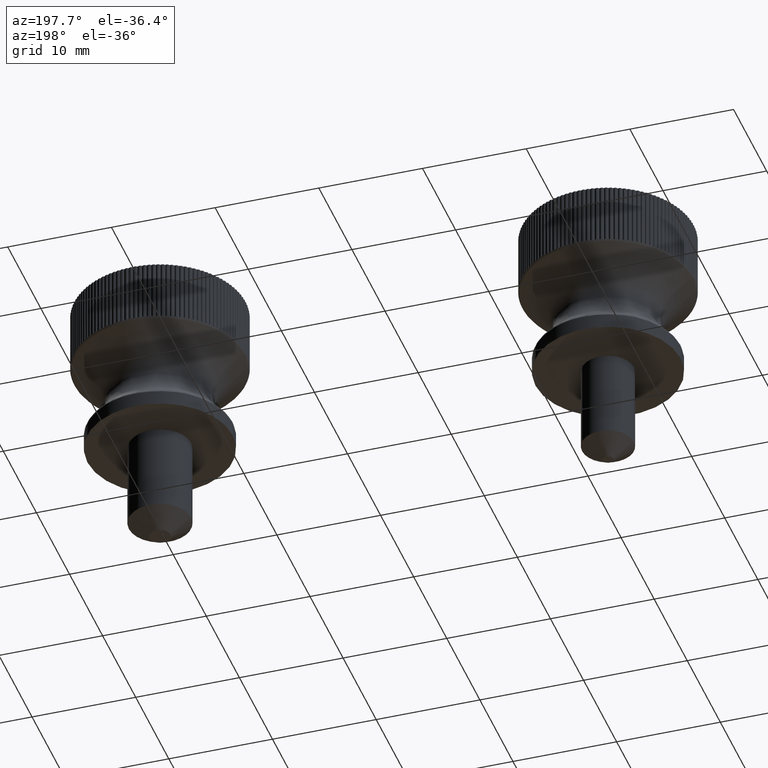
[diagram: clean part render]
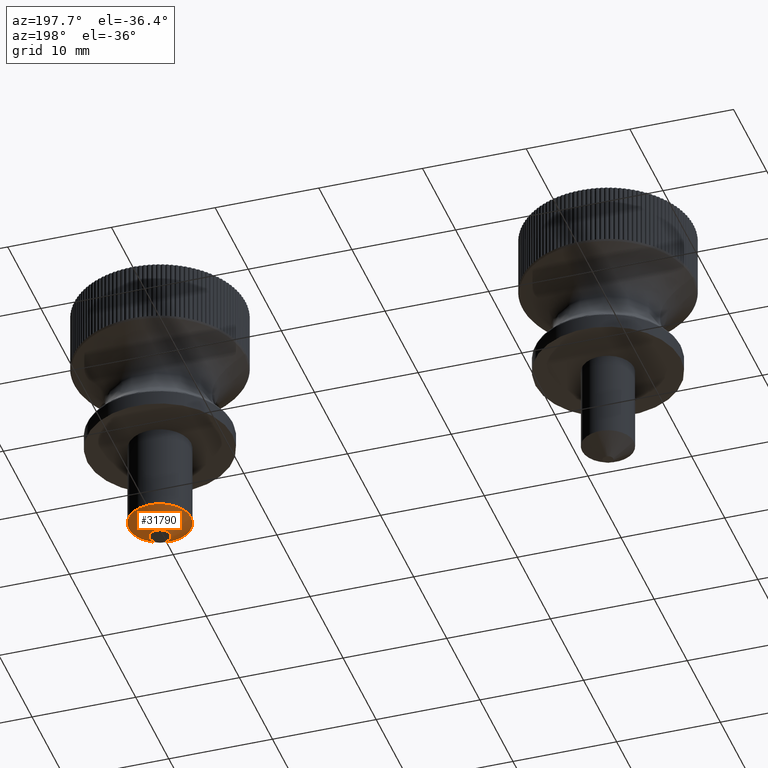
[diagram: same view with one face highlighted and labeled with its STEP entity id]
A machine part, auxiliary view. The second image highlights one B-rep face of the part: STEP entity #31790.
In plain terms, the highlighted conical surface has half-angle 53.13 deg.
Its self-contained STEP definition (entity closure, byte-faithful):
#6061=FACE_BOUND('',#9337,.T.);
#7154=FACE_OUTER_BOUND('',#9336,.T.);
#9336=EDGE_LOOP('',(#25633));
#9337=EDGE_LOOP('',(#25634));
#11515=CIRCLE('',#34815,3.);
#11516=CIRCLE('',#34816,1.);
#14051=VERTEX_POINT('',#60810);
#14052=VERTEX_POINT('',#60812);
#18034=EDGE_CURVE('',#14051,#14051,#11515,.T.);
#18035=EDGE_CURVE('',#14052,#14052,#11516,.T.);
#25633=ORIENTED_EDGE('',*,*,#18034,.T.);
#25634=ORIENTED_EDGE('',*,*,#18035,.T.);
#30700=CONICAL_SURFACE('',#34814,2.,53.130102354156);
#31790=ADVANCED_FACE('',(#7154,#6061),#30700,.T.);
#34814=AXIS2_PLACEMENT_3D('',#60809,#41094,#41095);
#34815=AXIS2_PLACEMENT_3D('',#60811,#41096,#41097);
#34816=AXIS2_PLACEMENT_3D('',#60813,#41098,#41099);
#41094=DIRECTION('center_axis',(0.,0.,1.));
#41095=DIRECTION('ref_axis',(1.,0.,0.));
#41096=DIRECTION('center_axis',(0.,0.,-1.));
#41097=DIRECTION('ref_axis',(1.,0.,0.));
#41098=DIRECTION('center_axis',(0.,0.,1.));
#41099=DIRECTION('ref_axis',(1.,0.,0.));
#60809=CARTESIAN_POINT('Origin',(0.,0.,-9.25));
#60810=CARTESIAN_POINT('',(-3.,3.67394039744206E-16,-8.5));
#60811=CARTESIAN_POINT('Origin',(0.,0.,-8.5));
#60812=CARTESIAN_POINT('',(-1.,-1.22464679914735E-16,-10.));
#60813=CARTESIAN_POINT('Origin',(0.,0.,-10.));